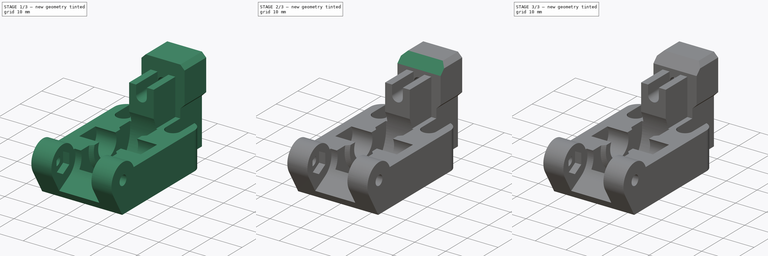
[diagram: build sequence overview — one tinted view per stage of 3, left to right]
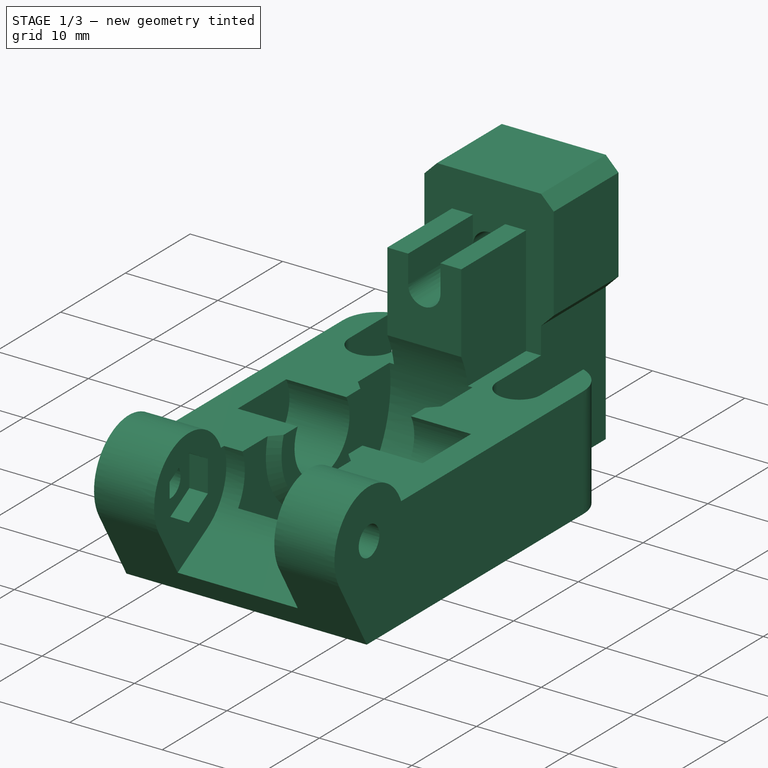
[diagram: stage 1 of 3 — iso view after this stage's code; geometry added in this stage tinted green]
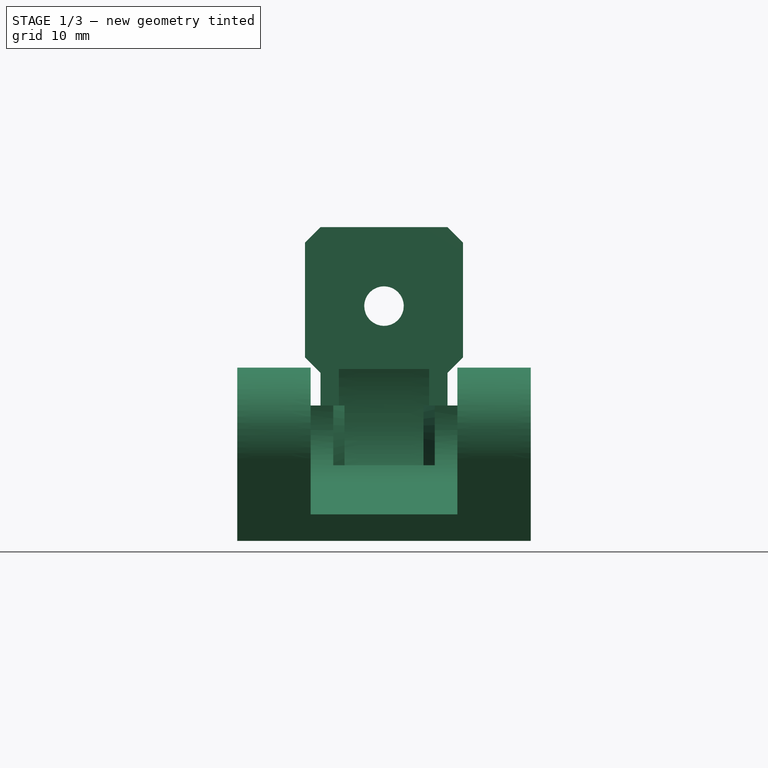
[diagram: stage 1 of 3 — front view after this stage's code; geometry added in this stage tinted green]
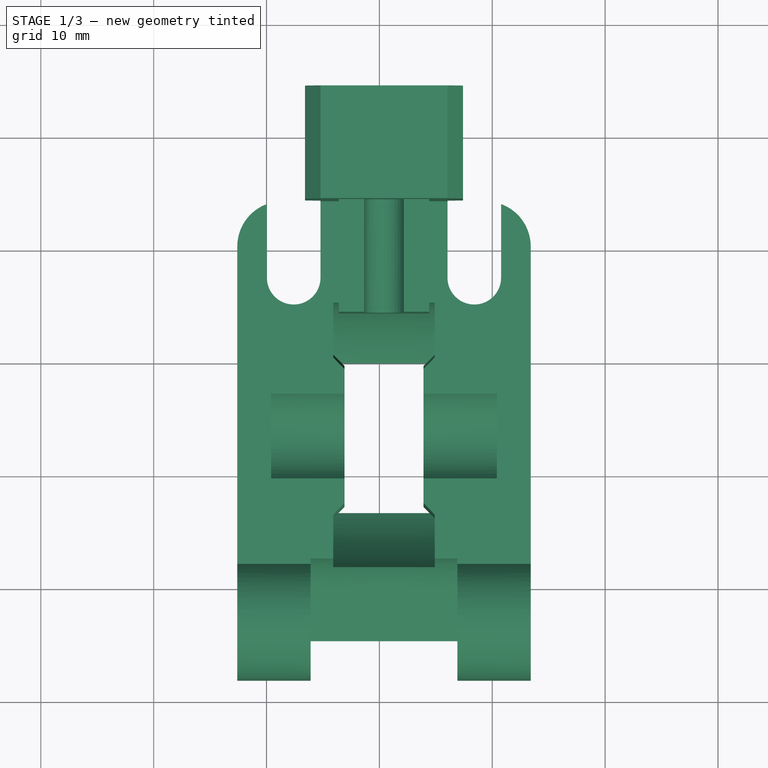
[diagram: stage 1 of 3 — top view after this stage's code; geometry added in this stage tinted green]
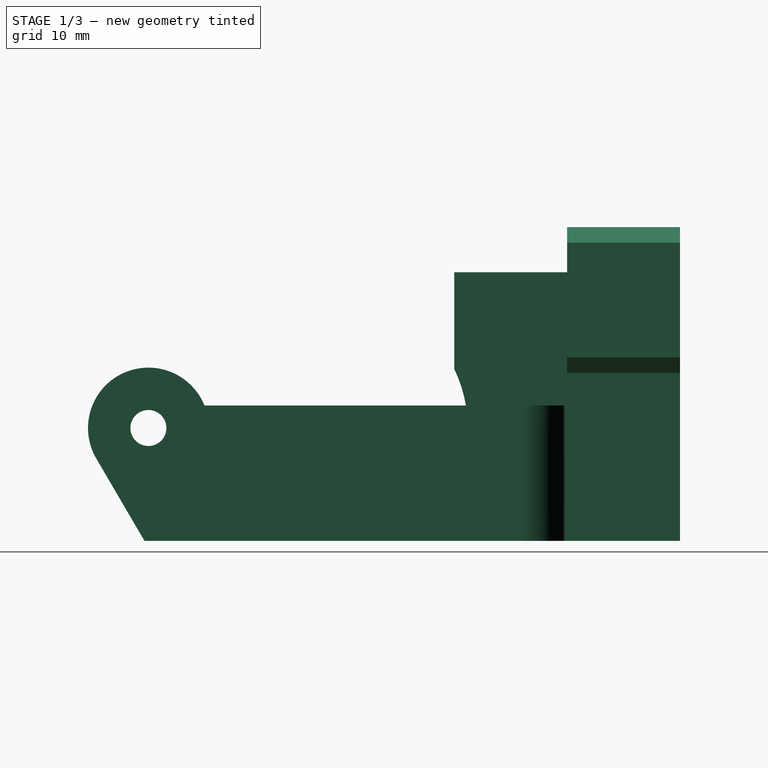
[diagram: stage 1 of 3 — right view after this stage's code; geometry added in this stage tinted green]
FCSTD DOCUMENT  (FreeCAD 0.16R4742 (Git))
Label: e_idler_modracord
License: All rights reserved
LicenseURL: http://en.wikipedia.org/wiki/All_rights_reserved
objects: PartDesign::Chamfer×3, Part::Feature×2, Sketcher::SketchObject×2, PartDesign::Pad×1, PartDesign::Pocket×1
note: 11 computed .brp shape members not serialized (recipe doc carries the construction recipe); baked Part::Feature solids carry a one-line shape summary decoded from their .brp

FEATURE [Part::Feature] Solid
  shape: bbox 26 x 42.45 x 23.8 mm, 2974 faces (baked)
FEATURE [Sketcher::SketchObject] Sketch
  ExternalGeometry = -> [Solid]
  Placement = pos=(0,-225.808,0) rot=(0,0.707107,0.707107;3.14159rad)
  Support = -> Solid [Face2974]
  sketch-geometry (14):
    g0: Circle CenterX=-680.408 CenterY=20.7944 CenterZ=0 NormalX=0 NormalY=0 NormalZ=1 Radius=1.75038
    g1: Circle [constr] CenterX=-680.408 CenterY=20.7944 CenterZ=0 NormalX=0 NormalY=0 NormalZ=1 Radius=7
    g2: LineSegment StartX=-686.033 StartY=-0.006 StartZ=0 EndX=-674.783 EndY=-0.006 EndZ=0
    g3: LineSegment StartX=-674.783 StartY=-0.006 StartZ=0 EndX=-674.783 EndY=14.8819 EndZ=0
    g4: LineSegment StartX=-674.783 StartY=14.8819 StartZ=0 EndX=-673.408 EndY=16.2572 EndZ=0
    g5: LineSegment StartX=-673.408 StartY=16.2572 StartZ=0 EndX=-673.408 EndY=26.4192 EndZ=0
    g6: LineSegment StartX=-673.408 StartY=26.4192 StartZ=0 EndX=-674.783 EndY=27.7944 EndZ=0
    g7: LineSegment StartX=-674.783 StartY=27.7944 StartZ=0 EndX=-686.032 EndY=27.7944 EndZ=0
    g8: LineSegment StartX=-686.032 StartY=27.7944 StartZ=0 EndX=-687.408 EndY=26.4192 EndZ=0
    g9: LineSegment StartX=-687.408 StartY=26.4192 StartZ=0 EndX=-687.409 EndY=16.2572 EndZ=0
    g10: LineSegment StartX=-687.409 StartY=16.2572 StartZ=0 EndX=-686.033 EndY=14.8819 EndZ=0
    g11: LineSegment StartX=-686.033 StartY=14.8819 StartZ=0 EndX=-686.033 EndY=-0.006 EndZ=0
    g12: LineSegment [constr] StartX=-687.409 StartY=16.2572 StartZ=0 EndX=-673.408 EndY=16.2572 EndZ=0
    g13: LineSegment [constr] StartX=-687.408 StartY=26.4192 StartZ=0 EndX=-673.408 EndY=26.4192 EndZ=0
  constraints (37):
    c: PointOnObject(g-3,g0)
    c: PointOnObject(g-4,g0)
    c: PointOnObject(g-5,g0)
    c: Coincident(g1,g0)
    c: Radius(g1) = 7
    c: Coincident(g-6,g2)
    c: Coincident(g2,g-7)
    c: Coincident(g2,g3)
    c: Vertical(g3)
    c: Coincident(g3,g4)
    c: Coincident(g4,g5)
    c: Vertical(g5)
    c: Coincident(g5,g6)
    c: Coincident(g6,g7)
    c: Horizontal(g7)
    c: Coincident(g7,g8)
    c: Coincident(g8,g9)
    c: Coincident(g9,g10)
    c: Coincident(g10,g11)
    c: Coincident(g11,g2)
    c: Vertical(g11)
    c: Equal(g6,g4)
    c: Equal(g4,g10)
    c: Equal(g10,g8)
    c: Parallel(g6,g10)
    c: Parallel(g4,g8)
    c: Perpendicular(g8,g6)
    c: Angle(g6,g5) = 2.35619
    c: Coincident(g12,g9)
    c: Coincident(g12,g4)
    c: Horizontal(g12)
    c: Coincident(g13,g8)
    c: PointOnObject(g13,g5)
    c: Horizontal(g13)
    c: Tangent(g5,g1)
    c: Tangent(g9,g1)
    c: Tangent(g1,g7)
FEATURE [PartDesign::Pad] Pad
  Length = 10
  Length2 = 100
  Sketch = -> Sketch
  Type = 0
FEATURE [Sketcher::SketchObject] Sketch001
  ExternalGeometry = -> [Pad]
  Placement = pos=(0,-215.808,0) rot=(0,0.707107,0.707107;3.14159rad)
  Support = -> Pad [Face1741]
  sketch-geometry (1):
    g0: Circle CenterX=-680.408 CenterY=20.7944 CenterZ=0 NormalX=0 NormalY=0 NormalZ=1 Radius=4.8
  constraints (2):
    c: Coincident(g0,g-3)
    c: Radius(g0) = 4.8
FEATURE [PartDesign::Pocket] Pocket
  Length = 6
  Sketch = -> Sketch001
  Type = 0
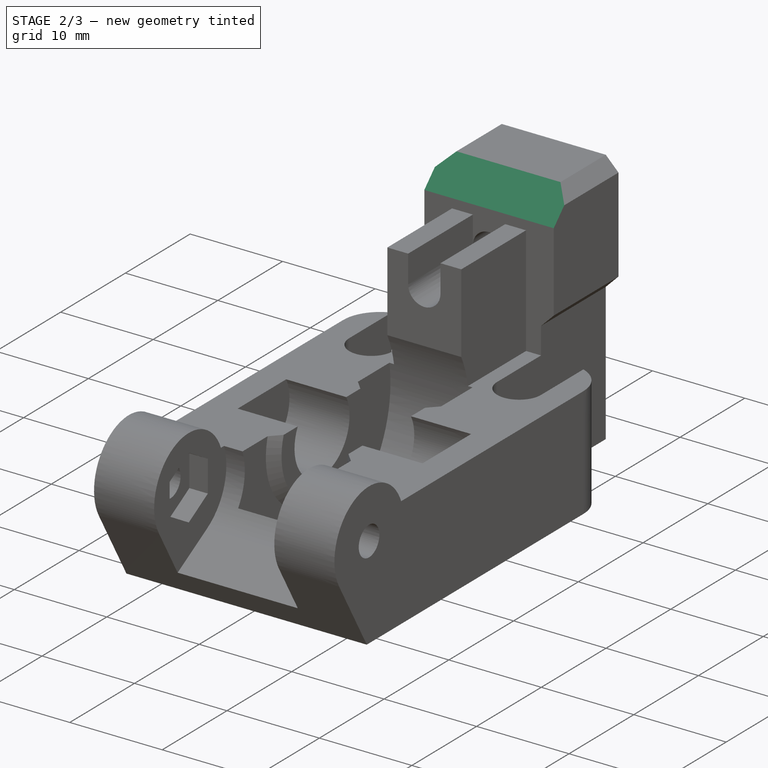
[diagram: stage 2 of 3 — iso view after this stage's code; geometry added in this stage tinted green]
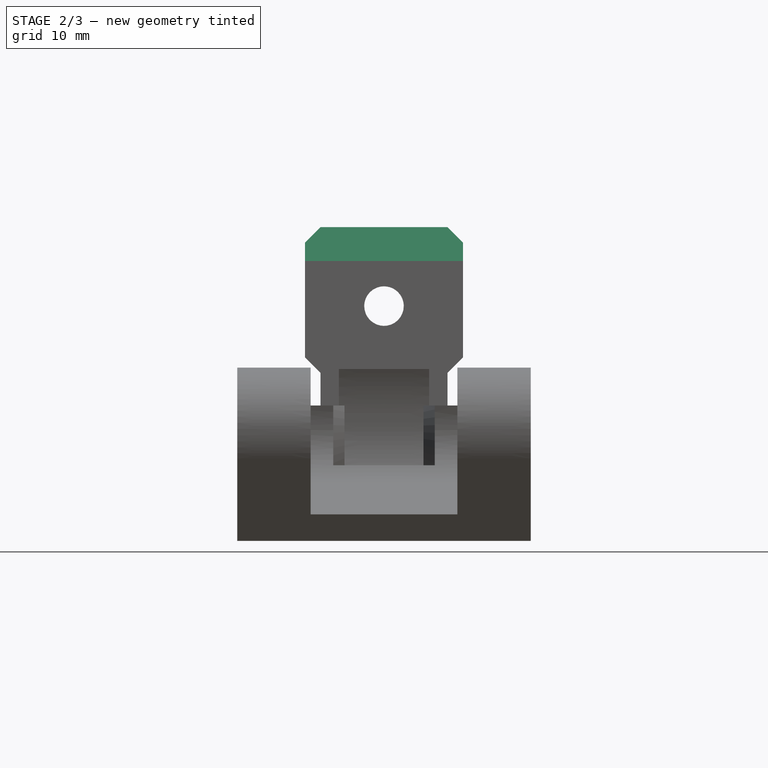
[diagram: stage 2 of 3 — front view after this stage's code; geometry added in this stage tinted green]
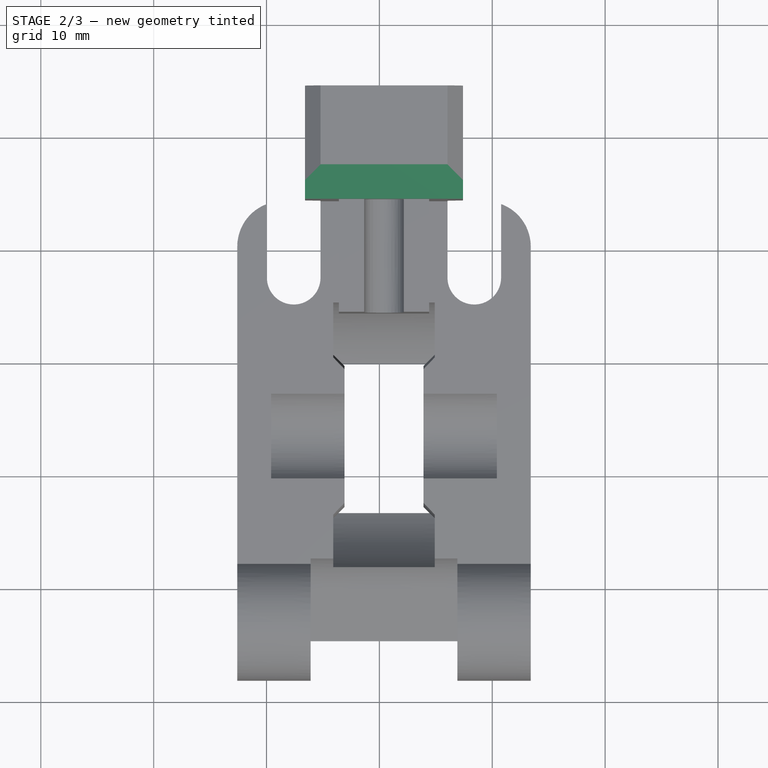
[diagram: stage 2 of 3 — top view after this stage's code; geometry added in this stage tinted green]
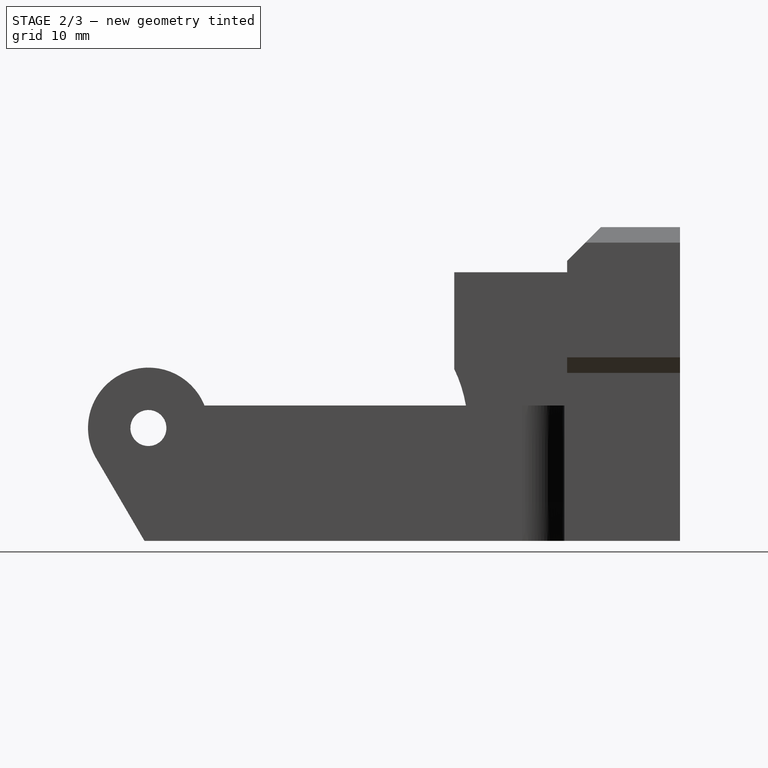
[diagram: stage 2 of 3 — right view after this stage's code; geometry added in this stage tinted green]
FEATURE [PartDesign::Chamfer] Chamfer
  Base = -> Pocket [Edge1087]
  Size = 3
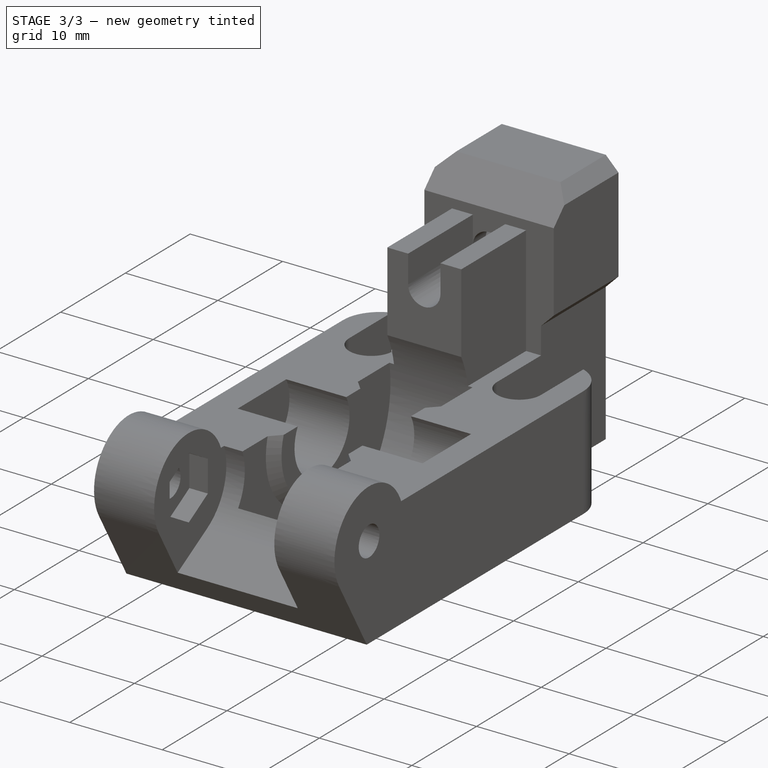
[diagram: stage 3 of 3 — iso view after this stage's code; geometry added in this stage tinted green]
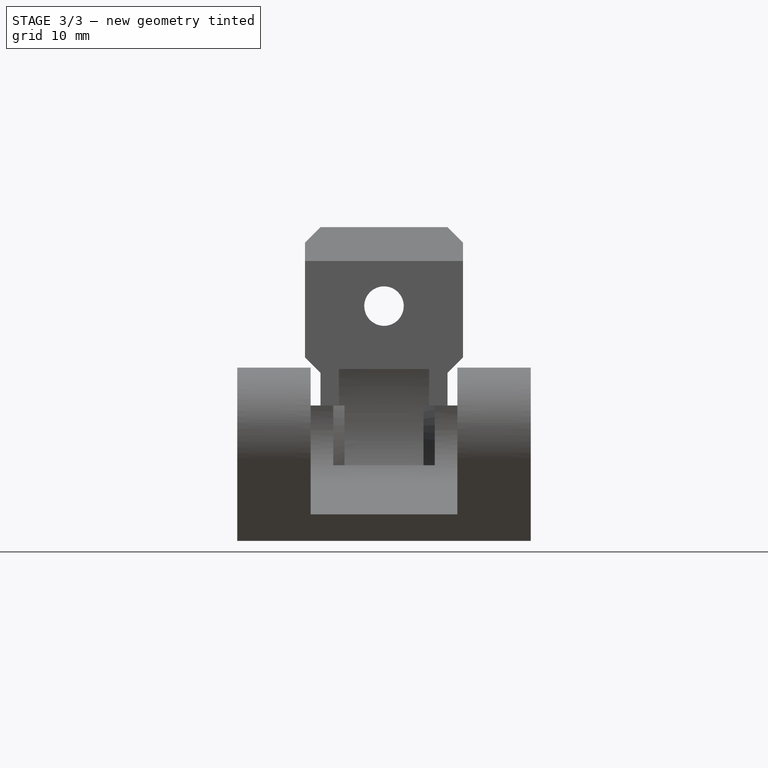
[diagram: stage 3 of 3 — front view after this stage's code; geometry added in this stage tinted green]
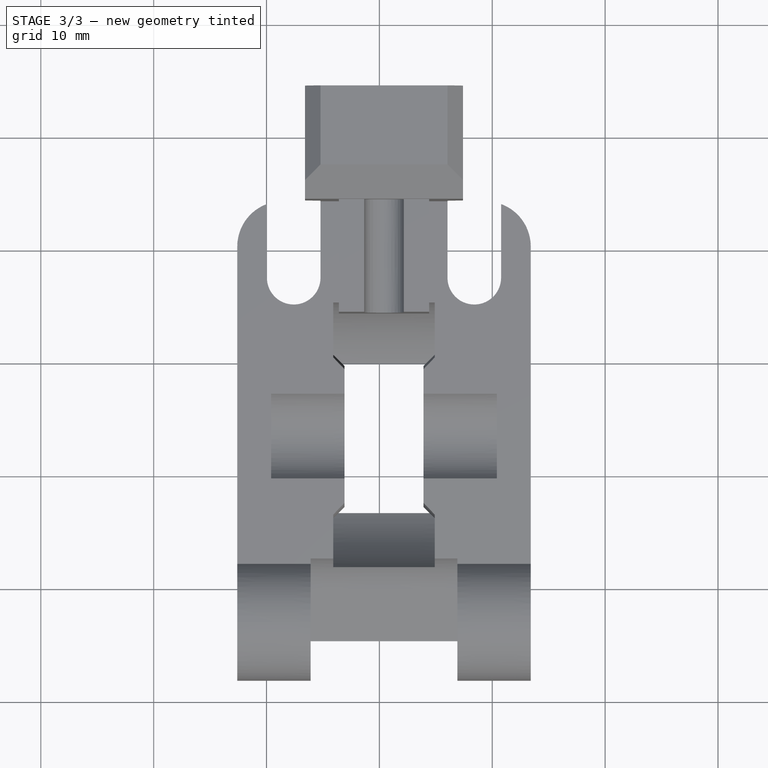
[diagram: stage 3 of 3 — top view after this stage's code; geometry added in this stage tinted green]
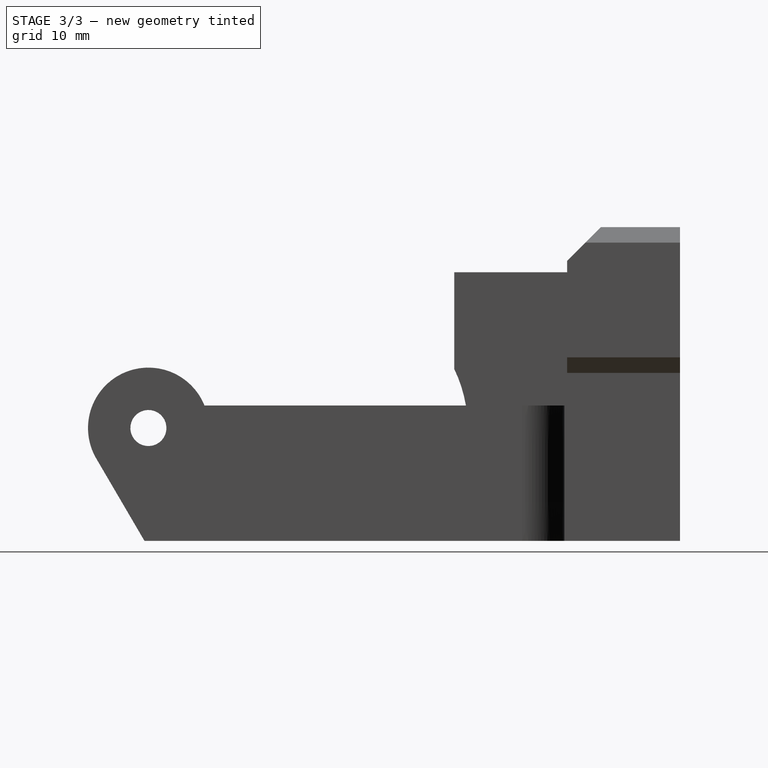
[diagram: stage 3 of 3 — right view after this stage's code; geometry added in this stage tinted green]
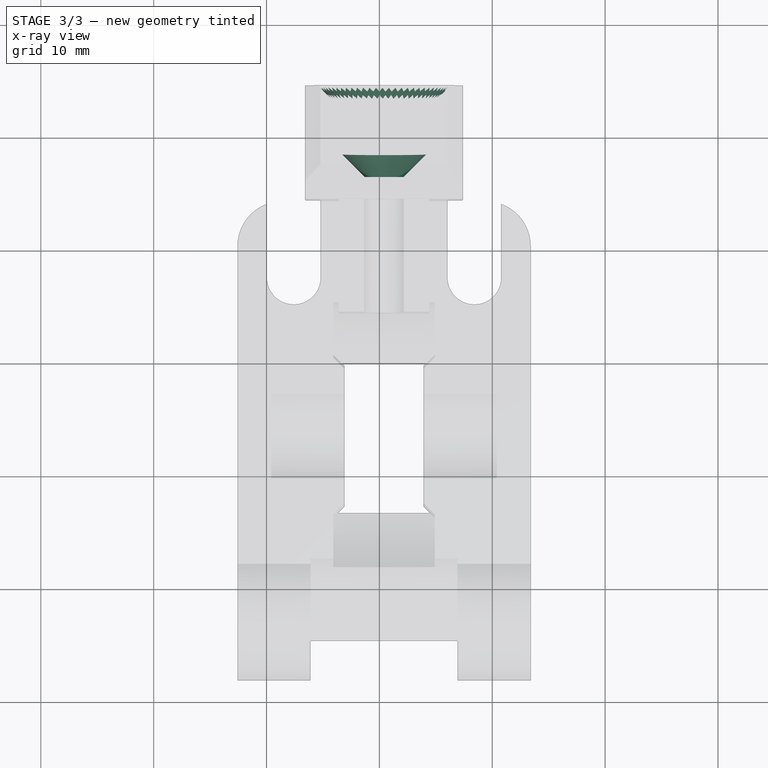
[diagram: stage 3 of 3 — x-ray composite at the top view; earlier geometry ghosted, this stage's added geometry solid]
FEATURE [PartDesign::Chamfer] Chamfer001
  Base = -> Chamfer [Edge270]
  Size = 2
FEATURE [PartDesign::Chamfer] Chamfer002
  Base = -> Chamfer001 [Edge372]
  Size = 1
FEATURE [Part::Feature] Chamfer002001  label="Chamfer003"
  shape: bbox 26 x 52.45 x 27.8 mm, 2990 faces (baked)
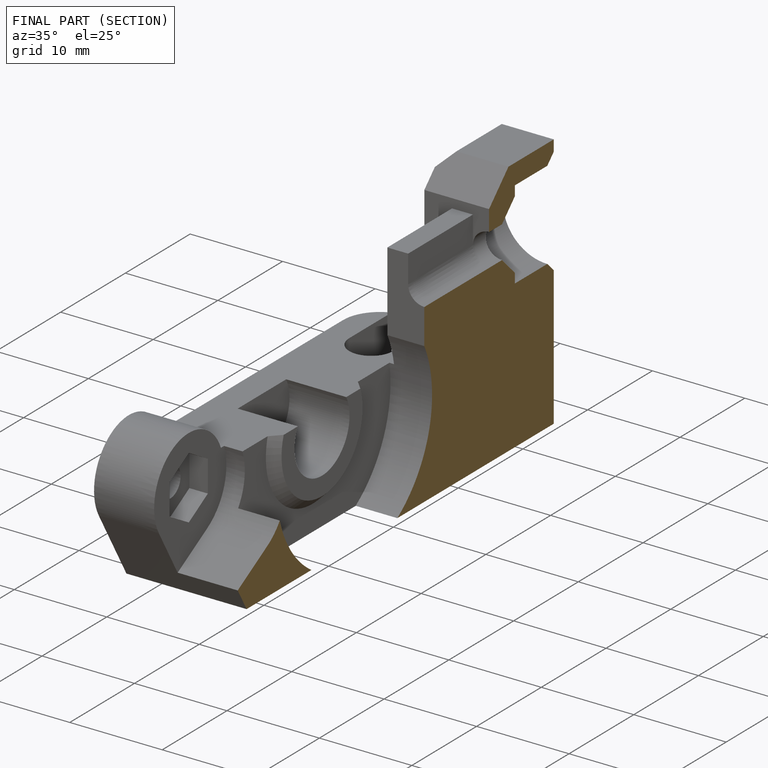
[diagram: finished part — half-section view (interior)]
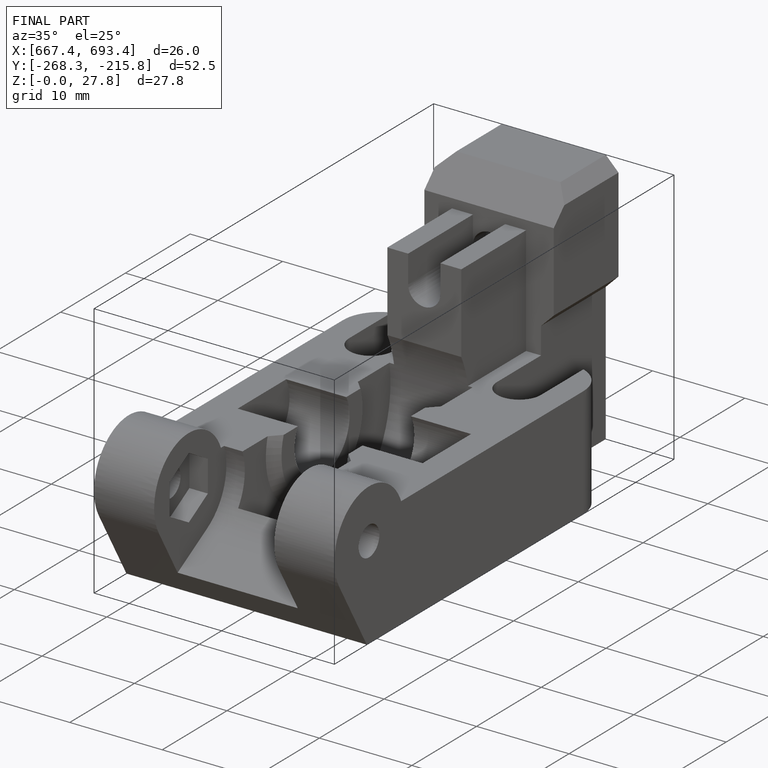
[diagram: finished part — iso view with bounding-box wireframe]
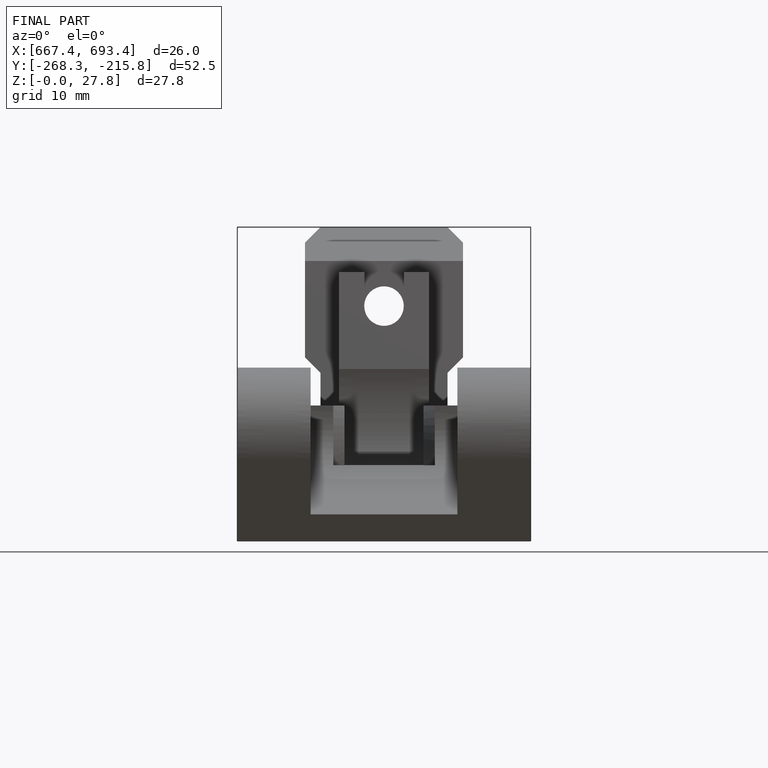
[diagram: finished part — front view with bounding-box wireframe]
